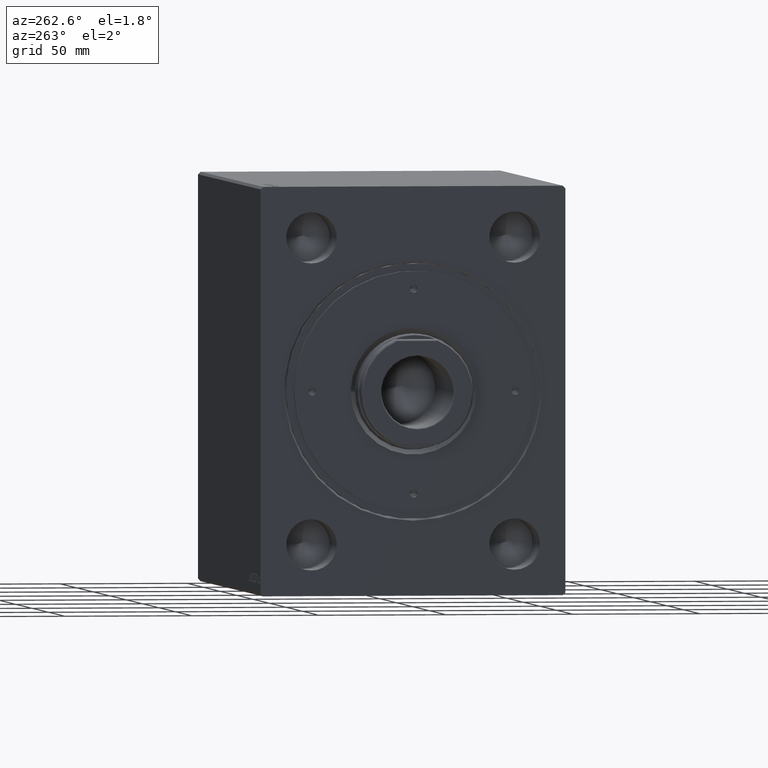
[diagram: clean part render]
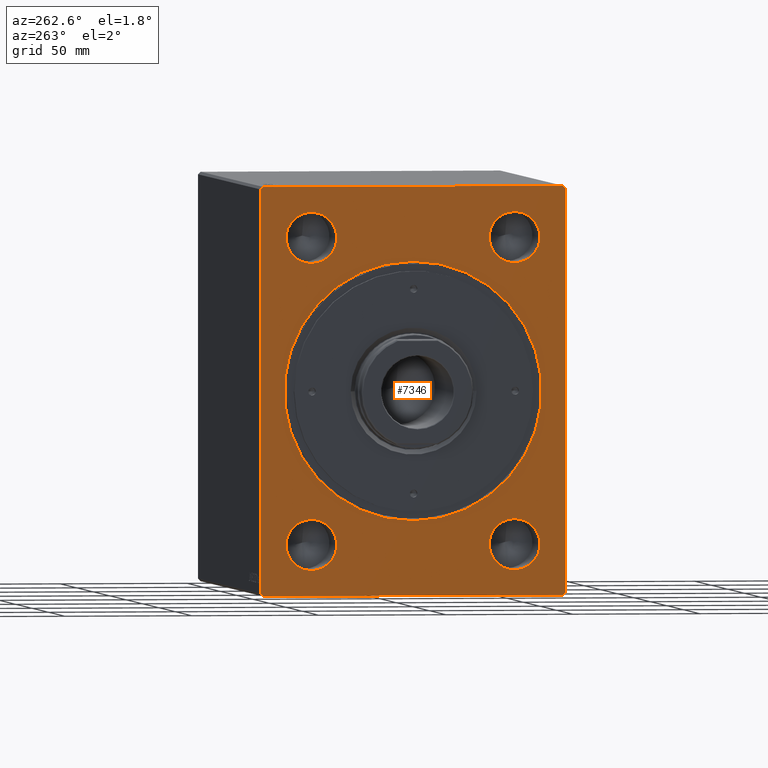
[diagram: same view with one face highlighted and labeled with its STEP entity id]
A machine part, auxiliary view. The second image highlights one B-rep face of the part: STEP entity #7346.
In plain terms, the highlighted planar face has unit normal (1, 0, 0).
Its self-contained STEP definition (entity closure, byte-faithful):
#121 = CARTESIAN_POINT ( 'NONE',  ( 7.347880794884116778E-16, 40.00000000000000711, -60.00000000000000000 ) ) ;
#136 = DIRECTION ( 'NONE',  ( 1.000000000000000000, 0.000000000000000000, 0.000000000000000000 ) ) ;
#699 = VERTEX_POINT ( 'NONE', #3730 ) ;
#1014 = EDGE_CURVE ( 'NONE', #699, #9031, #40394, .T. ) ;
#1413 = ORIENTED_EDGE ( 'NONE', *, *, #11976, .F. ) ;
#1480 = EDGE_CURVE ( 'NONE', #4597, #7710, #19420, .T. ) ;
#1547 = CARTESIAN_POINT ( 'NONE',  ( 7.347880794884116778E-16, 40.00000000000000711, 60.00000000000000711 ) ) ;
#1804 = DIRECTION ( 'NONE',  ( 0.000000000000000000, 0.000000000000000000, -1.000000000000000000 ) ) ;
#1805 = ORIENTED_EDGE ( 'NONE', *, *, #39885, .F. ) ;
#1828 = VERTEX_POINT ( 'NONE', #43523 ) ;
#1892 = VECTOR ( 'NONE', #9650, 1000.000000000000000 ) ;
#2246 = CARTESIAN_POINT ( 'NONE',  ( 0.000000000000000000, 59.99999999999998579, 79.00000000000000000 ) ) ;
#2759 = DIRECTION ( 'NONE',  ( 0.000000000000000000, 0.000000000000000000, -1.000000000000000000 ) ) ;
#2925 = EDGE_CURVE ( 'NONE', #31265, #40566, #7438, .T. ) ;
#3028 = VERTEX_POINT ( 'NONE', #2246 ) ;
#3297 = CARTESIAN_POINT ( 'NONE',  ( 7.347880794884116778E-16, 40.00000000000000711, -60.00000000000000000 ) ) ;
#3389 = CIRCLE ( 'NONE', #14042, 9.999999999999994671 ) ;
#3461 = CARTESIAN_POINT ( 'NONE',  ( 7.347880794884116778E-16, 40.00000000000000711, 70.00000000000000000 ) ) ;
#3678 = EDGE_CURVE ( 'NONE', #32558, #3028, #22519, .T. ) ;
#3730 = CARTESIAN_POINT ( 'NONE',  ( 0.000000000000000000, 58.99999999999998579, 80.00000000000000000 ) ) ;
#3879 = VECTOR ( 'NONE', #29854, 1000.000000000000114 ) ;
#4597 = VERTEX_POINT ( 'NONE', #33183 ) ;
#4960 = CIRCLE ( 'NONE', #20621, 9.999999999999994671 ) ;
#5202 = EDGE_CURVE ( 'NONE', #3028, #699, #17445, .T. ) ;
#5537 = EDGE_CURVE ( 'NONE', #9031, #37237, #22752, .T. ) ;
#5743 = DIRECTION ( 'NONE',  ( -1.000000000000000000, -0.000000000000000000, -0.000000000000000000 ) ) ;
#5833 = CARTESIAN_POINT ( 'NONE',  ( 0.000000000000000000, 59.00000000000000000, -80.00000000000000000 ) ) ;
#6157 = EDGE_LOOP ( 'NONE', ( #32149, #42210, #38371, #24523, #28306, #1805, #39020, #36104 ) ) ;
#6807 = AXIS2_PLACEMENT_3D ( 'NONE', #21029, #24145, #16576 ) ;
#6808 = DIRECTION ( 'NONE',  ( 0.000000000000000000, 0.000000000000000000, 1.000000000000000000 ) ) ;
#6821 = FACE_BOUND ( 'NONE', #8070, .T. ) ;
#7038 = FACE_BOUND ( 'NONE', #19942, .T. ) ;
#7346 = ADVANCED_FACE ( 'NONE', ( #13484, #27049, #40618, #7038, #6821, #17045 ), #33943, .F. ) ;
#7438 = LINE ( 'NONE', #21006, #21586 ) ;
#7546 = CIRCLE ( 'NONE', #6807, 10.00000000000000178 ) ;
#7710 = VERTEX_POINT ( 'NONE', #9115 ) ;
#8070 = EDGE_LOOP ( 'NONE', ( #27944, #21303 ) ) ;
#8514 = DIRECTION ( 'NONE',  ( 0.000000000000000000, 1.317511500741878924E-16, -1.000000000000000000 ) ) ;
#9031 = VERTEX_POINT ( 'NONE', #13477 ) ;
#9115 = CARTESIAN_POINT ( 'NONE',  ( 7.347880794884116778E-16, 40.00000000000000711, -50.00000000000000000 ) ) ;
#9402 = EDGE_CURVE ( 'NONE', #40566, #1828, #36791, .T. ) ;
#9650 = DIRECTION ( 'NONE',  ( 0.000000000000000000, 1.000000000000000000, 0.000000000000000000 ) ) ;
#10464 = EDGE_CURVE ( 'NONE', #1828, #32558, #29190, .T. ) ;
#11349 = VERTEX_POINT ( 'NONE', #27582 ) ;
#11976 = EDGE_CURVE ( 'NONE', #17124, #41331, #7546, .T. ) ;
#13477 = CARTESIAN_POINT ( 'NONE',  ( 0.000000000000000000, -59.00000000000001421, 79.99999999999998579 ) ) ;
#13484 = FACE_BOUND ( 'NONE', #31291, .T. ) ;
#13700 = DIRECTION ( 'NONE',  ( 0.000000000000000000, 0.000000000000000000, -1.000000000000000000 ) ) ;
#13724 = AXIS2_PLACEMENT_3D ( 'NONE', #3297, #39196, #26669 ) ;
#13887 = CARTESIAN_POINT ( 'NONE',  ( 0.000000000000000000, 59.99999999999998579, 79.00000000000000000 ) ) ;
#13911 = EDGE_LOOP ( 'NONE', ( #36021, #14864 ) ) ;
#14042 = AXIS2_PLACEMENT_3D ( 'NONE', #121, #37270, #6808 ) ;
#14354 = CIRCLE ( 'NONE', #35700, 9.999999999999994671 ) ;
#14864 = ORIENTED_EDGE ( 'NONE', *, *, #1480, .F. ) ;
#15518 = DIRECTION ( 'NONE',  ( -1.000000000000000000, -0.000000000000000000, -0.000000000000000000 ) ) ;
#16506 = AXIS2_PLACEMENT_3D ( 'NONE', #18439, #28669, #35562 ) ;
#16576 = DIRECTION ( 'NONE',  ( 0.000000000000000000, 0.000000000000000000, 1.000000000000000000 ) ) ;
#16945 = EDGE_CURVE ( 'NONE', #7710, #4597, #3389, .T. ) ;
#17003 = EDGE_CURVE ( 'NONE', #25092, #11349, #32519, .T. ) ;
#17006 = DIRECTION ( 'NONE',  ( 0.000000000000000000, -0.7071067811865474617, 0.7071067811865474617 ) ) ;
#17045 = FACE_OUTER_BOUND ( 'NONE', #6157, .T. ) ;
#17124 = VERTEX_POINT ( 'NONE', #22935 ) ;
#17211 = CIRCLE ( 'NONE', #16506, 9.999999999999994671 ) ;
#17445 = LINE ( 'NONE', #13887, #23059 ) ;
#18439 = CARTESIAN_POINT ( 'NONE',  ( 7.347880794884116778E-16, -39.99999999999999289, 60.00000000000000000 ) ) ;
#19157 = ORIENTED_EDGE ( 'NONE', *, *, #21410, .F. ) ;
#19420 = CIRCLE ( 'NONE', #13724, 9.999999999999994671 ) ;
#19942 = EDGE_LOOP ( 'NONE', ( #40224, #42035 ) ) ;
#20177 = VECTOR ( 'NONE', #22092, 1000.000000000000000 ) ;
#20413 = CARTESIAN_POINT ( 'NONE',  ( 0.000000000000000000, -60.00000000000000000, -79.00000000000001421 ) ) ;
#20621 = AXIS2_PLACEMENT_3D ( 'NONE', #42344, #35658, #32740 ) ;
#21006 = CARTESIAN_POINT ( 'NONE',  ( 0.000000000000000000, -60.00000000000000000, -79.00000000000001421 ) ) ;
#21029 = CARTESIAN_POINT ( 'NONE',  ( 7.347880794884116778E-16, 40.00000000000000711, 60.00000000000000711 ) ) ;
#21303 = ORIENTED_EDGE ( 'NONE', *, *, #25087, .T. ) ;
#21410 = EDGE_CURVE ( 'NONE', #41331, #17124, #28371, .T. ) ;
#21539 = VERTEX_POINT ( 'NONE', #30201 ) ;
#21586 = VECTOR ( 'NONE', #27678, 1000.000000000000000 ) ;
#22092 = DIRECTION ( 'NONE',  ( 0.000000000000000000, -8.783410004945858675E-17, 1.000000000000000000 ) ) ;
#22398 = AXIS2_PLACEMENT_3D ( 'NONE', #30605, #136, #13700 ) ;
#22519 = LINE ( 'NONE', #42551, #20177 ) ;
#22752 = LINE ( 'NONE', #36314, #3879 ) ;
#22935 = CARTESIAN_POINT ( 'NONE',  ( 7.347880794884116778E-16, 40.00000000000000711, 50.00000000000000711 ) ) ;
#23059 = VECTOR ( 'NONE', #17006, 1000.000000000000114 ) ;
#23237 = CARTESIAN_POINT ( 'NONE',  ( 7.347880794884116778E-16, -39.99999999999999289, -69.99999999999998579 ) ) ;
#23555 = EDGE_CURVE ( 'NONE', #21539, #36766, #4960, .T. ) ;
#24145 = DIRECTION ( 'NONE',  ( -1.000000000000000000, -0.000000000000000000, -0.000000000000000000 ) ) ;
#24523 = ORIENTED_EDGE ( 'NONE', *, *, #9402, .F. ) ;
#24584 = CARTESIAN_POINT ( 'NONE',  ( 0.000000000000000000, 6.208959271677078796E-15, -50.69999999999999574 ) ) ;
#25029 = CIRCLE ( 'NONE', #30688, 50.69999999999999574 ) ;
#25087 = EDGE_CURVE ( 'NONE', #28827, #41122, #25743, .T. ) ;
#25092 = VERTEX_POINT ( 'NONE', #23237 ) ;
#25392 = CARTESIAN_POINT ( 'NONE',  ( 0.000000000000000000, 0.000000000000000000, 0.000000000000000000 ) ) ;
#25638 = LINE ( 'NONE', #27492, #27246 ) ;
#25651 = DIRECTION ( 'NONE',  ( 0.000000000000000000, 0.7071067811865474617, 0.7071067811865474617 ) ) ;
#25725 = EDGE_CURVE ( 'NONE', #41122, #28827, #25029, .T. ) ;
#25743 = CIRCLE ( 'NONE', #27870, 50.69999999999999574 ) ;
#25781 = DIRECTION ( 'NONE',  ( 0.000000000000000000, 0.000000000000000000, 1.000000000000000000 ) ) ;
#26103 = CARTESIAN_POINT ( 'NONE',  ( 7.347880794884116778E-16, -39.99999999999999289, 69.99999999999998579 ) ) ;
#26669 = DIRECTION ( 'NONE',  ( 0.000000000000000000, 0.000000000000000000, 1.000000000000000000 ) ) ;
#26780 = EDGE_LOOP ( 'NONE', ( #33365, #33395 ) ) ;
#26823 = CARTESIAN_POINT ( 'NONE',  ( 7.347880794884116778E-16, -39.99999999999999289, -60.00000000000000000 ) ) ;
#27039 = DIRECTION ( 'NONE',  ( 0.000000000000000000, -1.000000000000000000, -1.176083712526648949E-16 ) ) ;
#27049 = FACE_BOUND ( 'NONE', #26780, .T. ) ;
#27212 = CARTESIAN_POINT ( 'NONE',  ( 0.000000000000000000, -59.00000000000001421, -80.00000000000000000 ) ) ;
#27246 = VECTOR ( 'NONE', #8514, 1000.000000000000000 ) ;
#27492 = CARTESIAN_POINT ( 'NONE',  ( 0.000000000000000000, -60.00000000000002132, 78.99999999999998579 ) ) ;
#27582 = CARTESIAN_POINT ( 'NONE',  ( 7.347880794884116778E-16, -39.99999999999999289, -50.00000000000000000 ) ) ;
#27678 = DIRECTION ( 'NONE',  ( 0.000000000000000000, 0.7071067811865450192, -0.7071067811865500152 ) ) ;
#27870 = AXIS2_PLACEMENT_3D ( 'NONE', #33018, #39918, #2759 ) ;
#27944 = ORIENTED_EDGE ( 'NONE', *, *, #25725, .T. ) ;
#27965 = VECTOR ( 'NONE', #27039, 1000.000000000000000 ) ;
#28306 = ORIENTED_EDGE ( 'NONE', *, *, #2925, .F. ) ;
#28371 = CIRCLE ( 'NONE', #34746, 10.00000000000000178 ) ;
#28669 = DIRECTION ( 'NONE',  ( -1.000000000000000000, -0.000000000000000000, -0.000000000000000000 ) ) ;
#28827 = VERTEX_POINT ( 'NONE', #24584 ) ;
#29190 = LINE ( 'NONE', #5833, #31643 ) ;
#29854 = DIRECTION ( 'NONE',  ( 0.000000000000000000, -0.7071067811865474617, -0.7071067811865474617 ) ) ;
#30201 = CARTESIAN_POINT ( 'NONE',  ( 7.347880794884116778E-16, -39.99999999999999289, 49.99999999999999289 ) ) ;
#30375 = DIRECTION ( 'NONE',  ( 0.000000000000000000, 0.000000000000000000, 1.000000000000000000 ) ) ;
#30388 = AXIS2_PLACEMENT_3D ( 'NONE', #26823, #41890, #30375 ) ;
#30605 = CARTESIAN_POINT ( 'NONE',  ( 0.000000000000000000, 0.000000000000000000, 0.000000000000000000 ) ) ;
#30688 = AXIS2_PLACEMENT_3D ( 'NONE', #25392, #38952, #1804 ) ;
#31265 = VERTEX_POINT ( 'NONE', #20413 ) ;
#31291 = EDGE_LOOP ( 'NONE', ( #19157, #1413 ) ) ;
#31643 = VECTOR ( 'NONE', #25651, 1000.000000000000114 ) ;
#31783 = DIRECTION ( 'NONE',  ( 0.000000000000000000, 0.000000000000000000, 1.000000000000000000 ) ) ;
#32149 = ORIENTED_EDGE ( 'NONE', *, *, #5202, .F. ) ;
#32519 = CIRCLE ( 'NONE', #30388, 9.999999999999994671 ) ;
#32558 = VERTEX_POINT ( 'NONE', #37994 ) ;
#32604 = CARTESIAN_POINT ( 'NONE',  ( 0.000000000000000000, -60.00000000000002132, 78.99999999999998579 ) ) ;
#32740 = DIRECTION ( 'NONE',  ( 0.000000000000000000, 0.000000000000000000, 1.000000000000000000 ) ) ;
#33018 = CARTESIAN_POINT ( 'NONE',  ( 0.000000000000000000, 0.000000000000000000, 0.000000000000000000 ) ) ;
#33183 = CARTESIAN_POINT ( 'NONE',  ( 7.347880794884116778E-16, 40.00000000000000711, -69.99999999999998579 ) ) ;
#33365 = ORIENTED_EDGE ( 'NONE', *, *, #35288, .F. ) ;
#33395 = ORIENTED_EDGE ( 'NONE', *, *, #17003, .F. ) ;
#33943 = PLANE ( 'NONE',  #22398 ) ;
#34705 = CARTESIAN_POINT ( 'NONE',  ( 0.000000000000000000, 0.000000000000000000, 50.69999999999999574 ) ) ;
#34746 = AXIS2_PLACEMENT_3D ( 'NONE', #1547, #5743, #25781 ) ;
#35288 = EDGE_CURVE ( 'NONE', #11349, #25092, #14354, .T. ) ;
#35562 = DIRECTION ( 'NONE',  ( 0.000000000000000000, 0.000000000000000000, 1.000000000000000000 ) ) ;
#35658 = DIRECTION ( 'NONE',  ( -1.000000000000000000, -0.000000000000000000, -0.000000000000000000 ) ) ;
#35700 = AXIS2_PLACEMENT_3D ( 'NONE', #42448, #15518, #31783 ) ;
#36021 = ORIENTED_EDGE ( 'NONE', *, *, #16945, .F. ) ;
#36104 = ORIENTED_EDGE ( 'NONE', *, *, #1014, .F. ) ;
#36127 = EDGE_CURVE ( 'NONE', #36766, #21539, #17211, .T. ) ;
#36314 = CARTESIAN_POINT ( 'NONE',  ( 0.000000000000000000, -59.00000000000001421, 79.99999999999998579 ) ) ;
#36766 = VERTEX_POINT ( 'NONE', #26103 ) ;
#36791 = LINE ( 'NONE', #27212, #1892 ) ;
#37237 = VERTEX_POINT ( 'NONE', #32604 ) ;
#37270 = DIRECTION ( 'NONE',  ( -1.000000000000000000, -0.000000000000000000, -0.000000000000000000 ) ) ;
#37273 = CARTESIAN_POINT ( 'NONE',  ( 0.000000000000000000, 58.99999999999998579, 80.00000000000000000 ) ) ;
#37994 = CARTESIAN_POINT ( 'NONE',  ( 0.000000000000000000, 60.00000000000000000, -79.00000000000000000 ) ) ;
#38371 = ORIENTED_EDGE ( 'NONE', *, *, #10464, .F. ) ;
#38952 = DIRECTION ( 'NONE',  ( 1.000000000000000000, 0.000000000000000000, 0.000000000000000000 ) ) ;
#39020 = ORIENTED_EDGE ( 'NONE', *, *, #5537, .F. ) ;
#39196 = DIRECTION ( 'NONE',  ( -1.000000000000000000, -0.000000000000000000, -0.000000000000000000 ) ) ;
#39885 = EDGE_CURVE ( 'NONE', #37237, #31265, #25638, .T. ) ;
#39918 = DIRECTION ( 'NONE',  ( 1.000000000000000000, 0.000000000000000000, 0.000000000000000000 ) ) ;
#40224 = ORIENTED_EDGE ( 'NONE', *, *, #36127, .F. ) ;
#40394 = LINE ( 'NONE', #37273, #27965 ) ;
#40566 = VERTEX_POINT ( 'NONE', #42378 ) ;
#40618 = FACE_BOUND ( 'NONE', #13911, .T. ) ;
#41122 = VERTEX_POINT ( 'NONE', #34705 ) ;
#41331 = VERTEX_POINT ( 'NONE', #3461 ) ;
#41890 = DIRECTION ( 'NONE',  ( -1.000000000000000000, -0.000000000000000000, -0.000000000000000000 ) ) ;
#42035 = ORIENTED_EDGE ( 'NONE', *, *, #23555, .F. ) ;
#42210 = ORIENTED_EDGE ( 'NONE', *, *, #3678, .F. ) ;
#42344 = CARTESIAN_POINT ( 'NONE',  ( 7.347880794884116778E-16, -39.99999999999999289, 60.00000000000000000 ) ) ;
#42378 = CARTESIAN_POINT ( 'NONE',  ( 0.000000000000000000, -59.00000000000001421, -80.00000000000000000 ) ) ;
#42448 = CARTESIAN_POINT ( 'NONE',  ( 7.347880794884116778E-16, -39.99999999999999289, -60.00000000000000000 ) ) ;
#42551 = CARTESIAN_POINT ( 'NONE',  ( 0.000000000000000000, 60.00000000000000000, -79.00000000000000000 ) ) ;
#43523 = CARTESIAN_POINT ( 'NONE',  ( 0.000000000000000000, 59.00000000000000000, -80.00000000000000000 ) ) ;